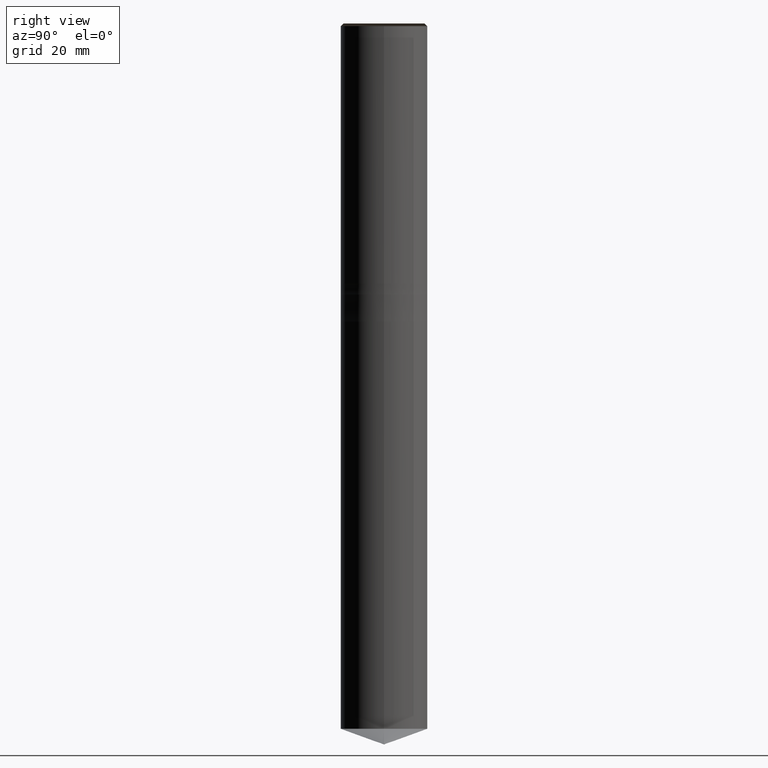
[diagram: clean part render]
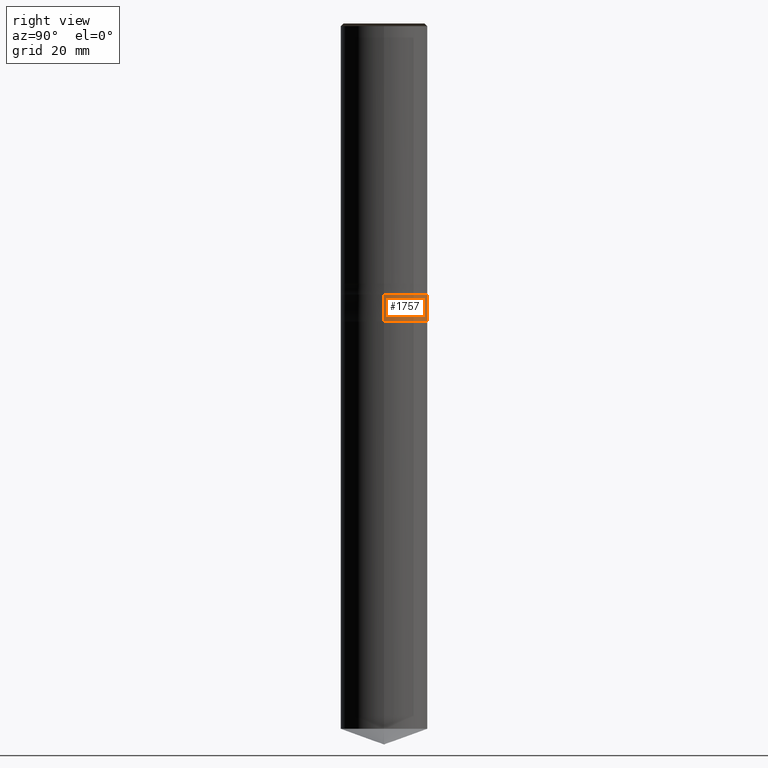
[diagram: same view with one face highlighted and labeled with its STEP entity id]
A machine part, right view. The second image highlights one B-rep face of the part: STEP entity #1757.
In plain terms, the highlighted face is a freeform B-spline surface patch.
Its self-contained STEP definition (entity closure, byte-faithful):
#1564=CARTESIAN_POINT('',(8.0,0.0,-7.0));
#1565=CARTESIAN_POINT('',(8.0,8.0,-7.0));
#1566=CARTESIAN_POINT('',(0.0,8.0,-7.0));
#1567=CARTESIAN_POINT('',(-8.0,8.0,-7.0));
#1568=CARTESIAN_POINT('',(-8.0,0.0,-7.0));
#1576=CARTESIAN_POINT('',(8.0,0.0,-2.0));
#1577=CARTESIAN_POINT('',(8.0,8.0,-2.0));
#1578=CARTESIAN_POINT('',(0.0,8.0,-2.0));
#1579=CARTESIAN_POINT('',(-8.0,8.0,-2.0));
#1580=CARTESIAN_POINT('',(-8.0,0.0,-2.0));
#1738=(
BOUNDED_SURFACE()
B_SPLINE_SURFACE(1,2,(
(#1564,#1565,#1566,#1567,#1568),
(#1576,#1577,#1578,#1579,#1580)
), .UNSPECIFIED.,.F.,.F.,.F.)
B_SPLINE_SURFACE_WITH_KNOTS((2,2),(3,2,3),(
0.0,1.0),(
0.0,0.5,1.0), .UNSPECIFIED.)
GEOMETRIC_REPRESENTATION_ITEM()
RATIONAL_B_SPLINE_SURFACE(((1.0,0.707106781187,1.0,0.707106781187,1.0),
(1.0,0.707106781187,1.0,0.707106781187,1.0)
))
REPRESENTATION_ITEM('')
SURFACE()
);
#1739=(
BOUNDED_CURVE()
B_SPLINE_CURVE(2,(#1568,#1567,#1566,#1565,#1564),.UNSPECIFIED.,.F.,.F.)
B_SPLINE_CURVE_WITH_KNOTS((3,2,3),
(0.0,0.5,1.0),.UNSPECIFIED.)
CURVE()
GEOMETRIC_REPRESENTATION_ITEM()
RATIONAL_B_SPLINE_CURVE((1.0,0.707106781187,1.0,0.707106781187,1.0))
REPRESENTATION_ITEM('')
);
#1740=(
BOUNDED_CURVE()
B_SPLINE_CURVE(1,(#1564,#1576),.UNSPECIFIED.,.F.,.F.)
B_SPLINE_CURVE_WITH_KNOTS((2,2),
(0.0,1.0),.UNSPECIFIED.)
CURVE()
GEOMETRIC_REPRESENTATION_ITEM()
RATIONAL_B_SPLINE_CURVE((1.0,1.0))
REPRESENTATION_ITEM('')
);
#1741=(
BOUNDED_CURVE()
B_SPLINE_CURVE(2,(#1576,#1577,#1578,#1579,#1580),.UNSPECIFIED.,.F.,.F.)
B_SPLINE_CURVE_WITH_KNOTS((3,2,3),
(0.0,0.5,1.0),.UNSPECIFIED.)
CURVE()
GEOMETRIC_REPRESENTATION_ITEM()
RATIONAL_B_SPLINE_CURVE((1.0,0.707106781187,1.0,0.707106781187,1.0))
REPRESENTATION_ITEM('')
);
#1742=(
BOUNDED_CURVE()
B_SPLINE_CURVE(1,(#1580,#1568),.UNSPECIFIED.,.F.,.F.)
B_SPLINE_CURVE_WITH_KNOTS((2,2),
(0.0,1.0),.UNSPECIFIED.)
CURVE()
GEOMETRIC_REPRESENTATION_ITEM()
RATIONAL_B_SPLINE_CURVE((1.0,1.0))
REPRESENTATION_ITEM('')
);
#1743=VERTEX_POINT('',#1564);
#1744=VERTEX_POINT('',#1568);
#1745=VERTEX_POINT('',#1576);
#1746=VERTEX_POINT('',#1580);
#1747=EDGE_CURVE('',#1744,#1743,#1739,.T.);
#1748=EDGE_CURVE('',#1743,#1745,#1740,.T.);
#1749=EDGE_CURVE('',#1745,#1746,#1741,.T.);
#1750=EDGE_CURVE('',#1746,#1744,#1742,.T.);
#1751=ORIENTED_EDGE('',*,*,#1747,.T.);
#1752=ORIENTED_EDGE('',*,*,#1748,.T.);
#1753=ORIENTED_EDGE('',*,*,#1749,.T.);
#1754=ORIENTED_EDGE('',*,*,#1750,.T.);
#1755=EDGE_LOOP('',(#1751,#1752,#1753,#1754));
#1756=FACE_OUTER_BOUND('',#1755,.T.);
#1757=ADVANCED_FACE('',(#1756),#1738,.T.);